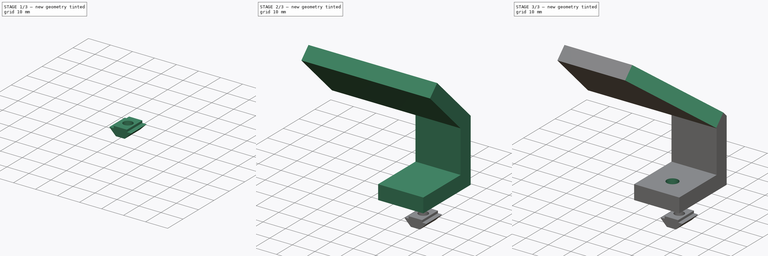
[diagram: build sequence overview — one tinted view per stage of 3, left to right]
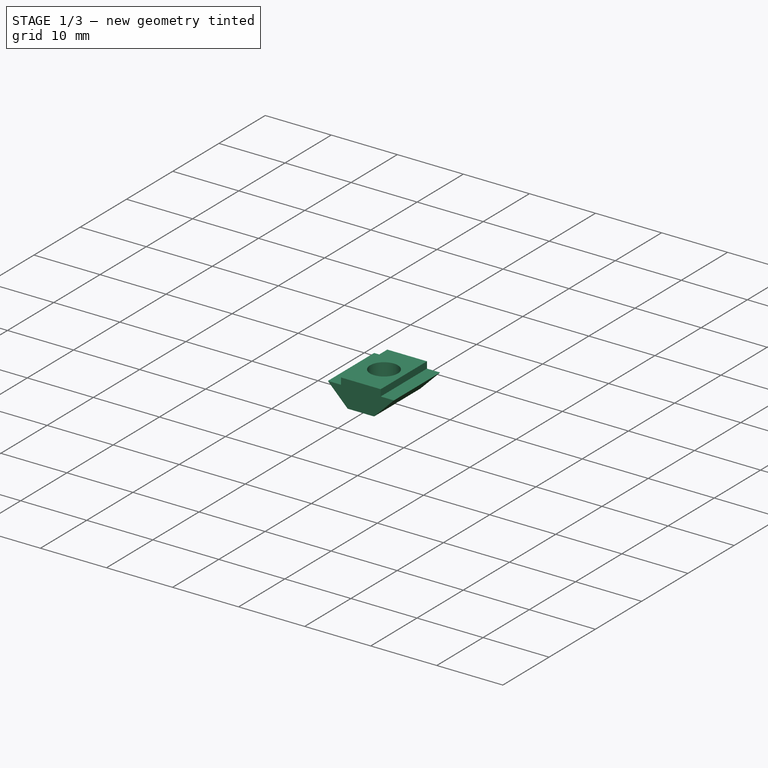
[diagram: stage 1 of 3 — iso view after this stage's code; geometry added in this stage tinted green]
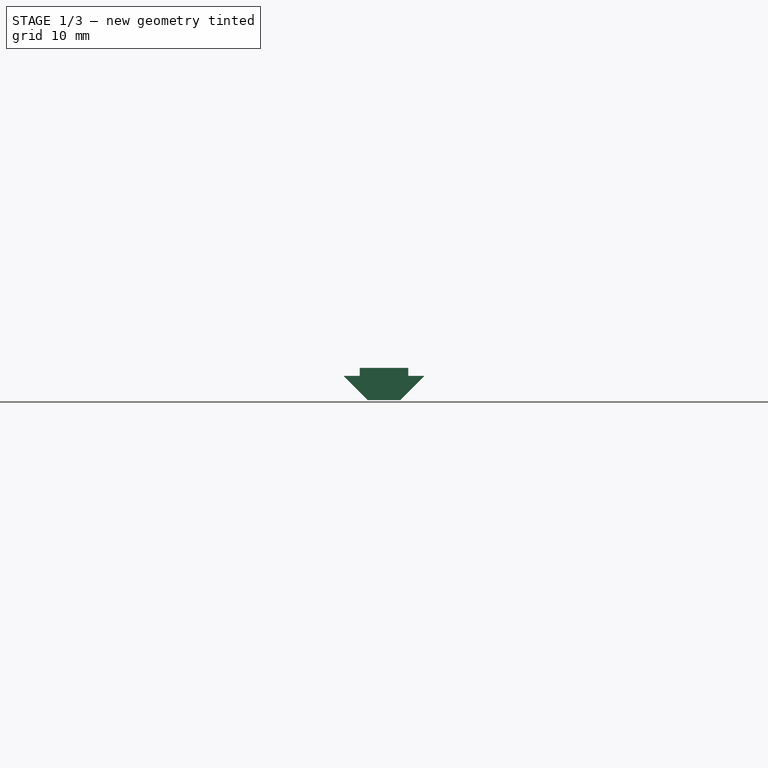
[diagram: stage 1 of 3 — front view after this stage's code; geometry added in this stage tinted green]
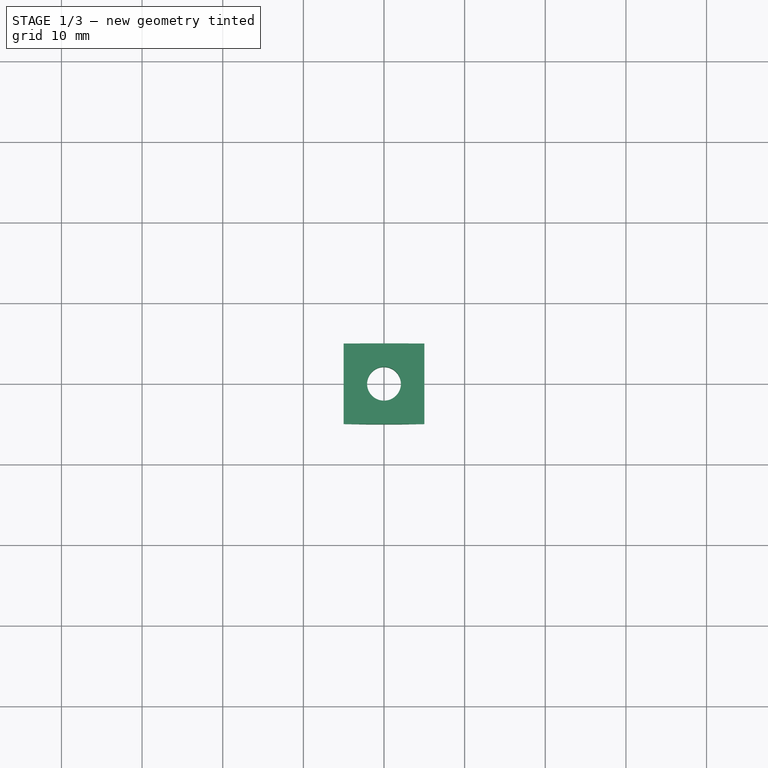
[diagram: stage 1 of 3 — top view after this stage's code; geometry added in this stage tinted green]
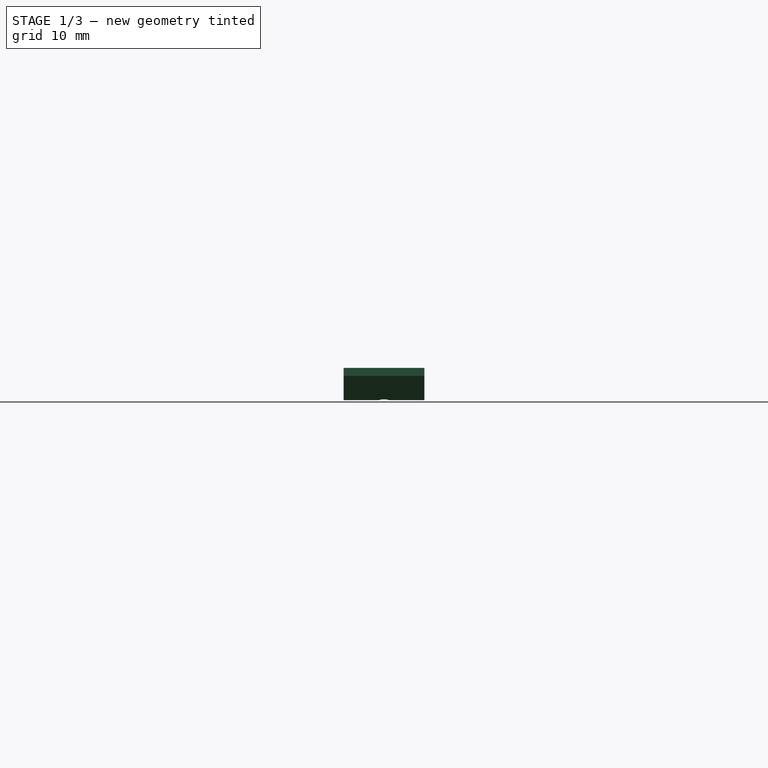
[diagram: stage 1 of 3 — right view after this stage's code; geometry added in this stage tinted green]
FCSTD DOCUMENT  (FreeCAD 0.19R21858 (Git))
Label: y_cable_chain_mount
License: All rights reserved
LicenseURL: http://en.wikipedia.org/wiki/All_rights_reserved
objects: Sketcher::SketchObject×5, PartDesign::Pad×2, PartDesign::Hole×2, PartDesign::Body×2, PartDesign::Pocket×1, PartDesign::Chamfer×1, PartDesign::Fillet×1, App::Part×1
note: 21 computed .brp shape members not serialized (recipe doc carries the construction recipe); baked Part::Feature solids carry a one-line shape summary decoded from their .brp

FEATURE [PartDesign::Body] Body030  label="Body033"
  Group = -> [Sketch077,Pad028,Sketch078,Pocket021,Chamfer003,Sketch079,Hole016]
  Origin = -> Origin096
  Tip = -> Hole016
FEATURE [Sketcher::SketchObject] Sketch080
  MapMode = 5
  Support = -> [XY_Plane097]
  sketch-geometry (1):
    g0: Circle CenterX=0 CenterY=0 CenterZ=0 NormalX=0 NormalY=0 NormalZ=1 AngleXU=0 Radius=4
  constraints (2):
    c: Coincident(g0,g-1)
    c: Diameter(g0) = 8
FEATURE [Sketcher::SketchObject] Sketch081
  MapMode = 5
  Placement = pos=(0,0,0) rot=(1,0,0;1.5708rad)
  Support = -> [XZ_Plane097]
  sketch-geometry (8):
    g0: LineSegment StartX=-3 StartY=-1 StartZ=0 EndX=-3 EndY=0 EndZ=0
    g1: LineSegment StartX=-3 StartY=0 StartZ=0 EndX=3 EndY=0 EndZ=0
    g2: LineSegment StartX=3 StartY=0 StartZ=0 EndX=3 EndY=-1 EndZ=0
    g3: LineSegment StartX=3 StartY=-1 StartZ=0 EndX=5 EndY=-1 EndZ=0
    g4: LineSegment StartX=5 StartY=-1 StartZ=0 EndX=2 EndY=-4 EndZ=0
    g5: LineSegment StartX=2 StartY=-4 StartZ=0 EndX=-2 EndY=-4 EndZ=0
    g6: LineSegment StartX=-2 StartY=-4 StartZ=0 EndX=-5 EndY=-1 EndZ=0
    g7: LineSegment StartX=-5 StartY=-1 StartZ=0 EndX=-3 EndY=-1 EndZ=0
  constraints (20):
    c: Coincident(g0,g1)
    c: Coincident(g1,g2)
    c: Vertical(g2)
    c: Coincident(g2,g3)
    c: Coincident(g4,g5)
    c: Coincident(g5,g6)
    c: Symmetric(g0,g2,g-2)
    c: Coincident(g7,g0)
    c: Symmetric(g0,g1,g-2)
    c: PointOnObject(g-1,g1)
    c: Symmetric(g5,g4,g-2)
    c: Horizontal(g3)
    c: Symmetric(g7,g3,g-2)
    c: Perpendicular(g6,g4)
    c: DistanceY(g4,g1) = 4
    c: DistanceX(g1,g1) = 6
    c: DistanceY(g2,g2) = 1
    c: Coincident(g6,g7)
    c: Coincident(g4,g3)
    c: DistanceX(g6,g3) = 10
FEATURE [PartDesign::Pad] Pad029  label="Pad030"
  Length = 10
  Length2 = 100
  Midplane = true
  Placement = pos=(0,0,0) rot=(1,0,0;1.5708rad)
  Profile = -> Sketch081
  Type = 0
FEATURE [PartDesign::Hole] Hole017
  BaseFeature = -> Pad029
  Depth = 25
  DepthType = 1
  Diameter = 4.2
  DrillPoint = 1
  DrillPointAngle = 118
  HoleCutCountersinkAngle = 90
  HoleCutDepth = 0
  HoleCutDiameter = 5
  HoleCutType = 0
  ModelActualThread = false
  Placement = pos=(0,0,0) rot=(1,0,0;1.5708rad)
  Profile = -> Sketch080
  Tapered = false
  TaperedAngle = 90
  ThreadAngle = 60
  ThreadClass = 0
  ThreadCutOffInner = 0.0866025
  ThreadCutOffOuter = 0.173205
  ThreadDirection = 0
  ThreadFit = 0
  ThreadPitch = 0.8
  ThreadSize = 6
  ThreadType = 1
  Threaded = true
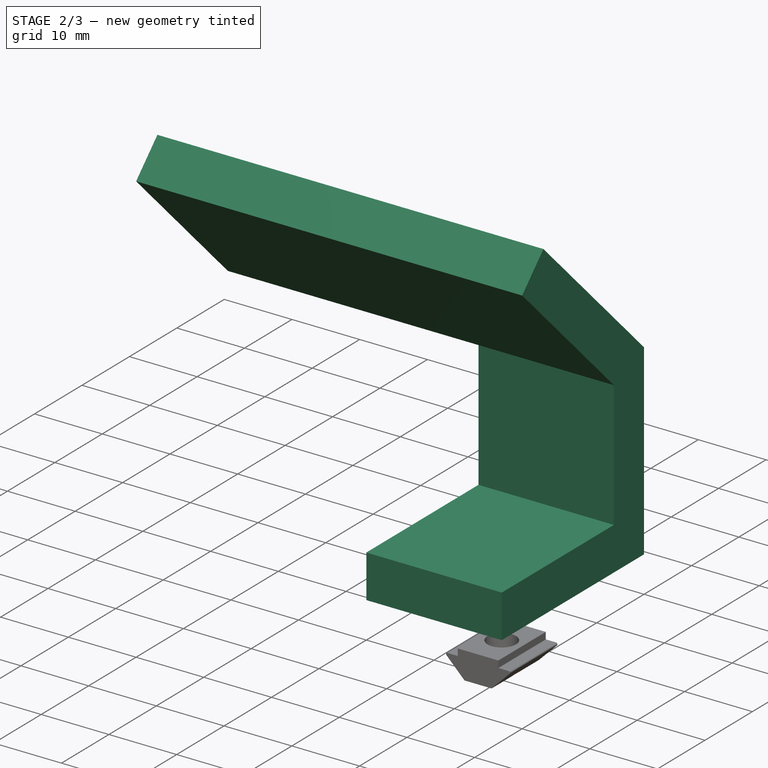
[diagram: stage 2 of 3 — iso view after this stage's code; geometry added in this stage tinted green]
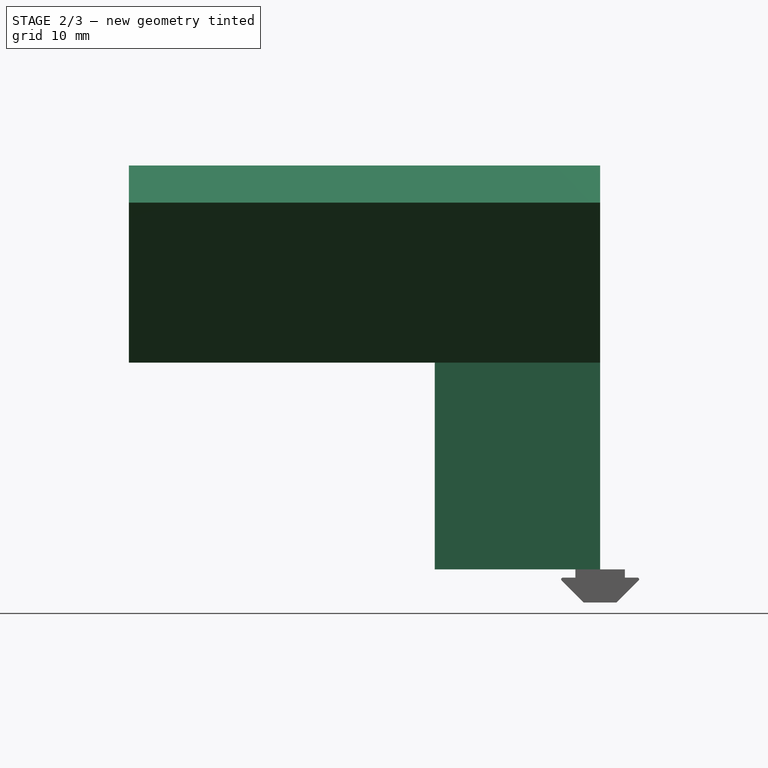
[diagram: stage 2 of 3 — front view after this stage's code; geometry added in this stage tinted green]
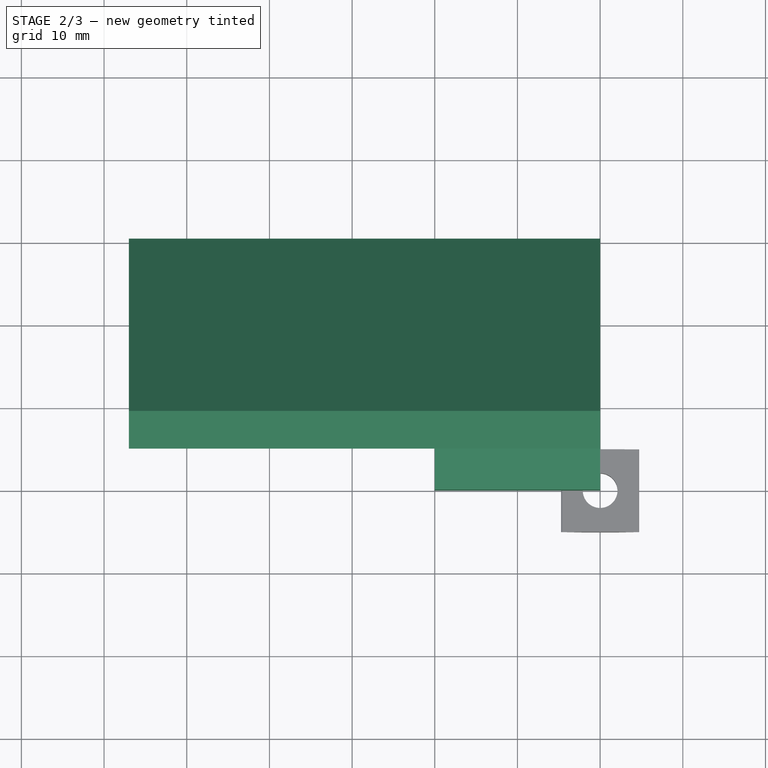
[diagram: stage 2 of 3 — top view after this stage's code; geometry added in this stage tinted green]
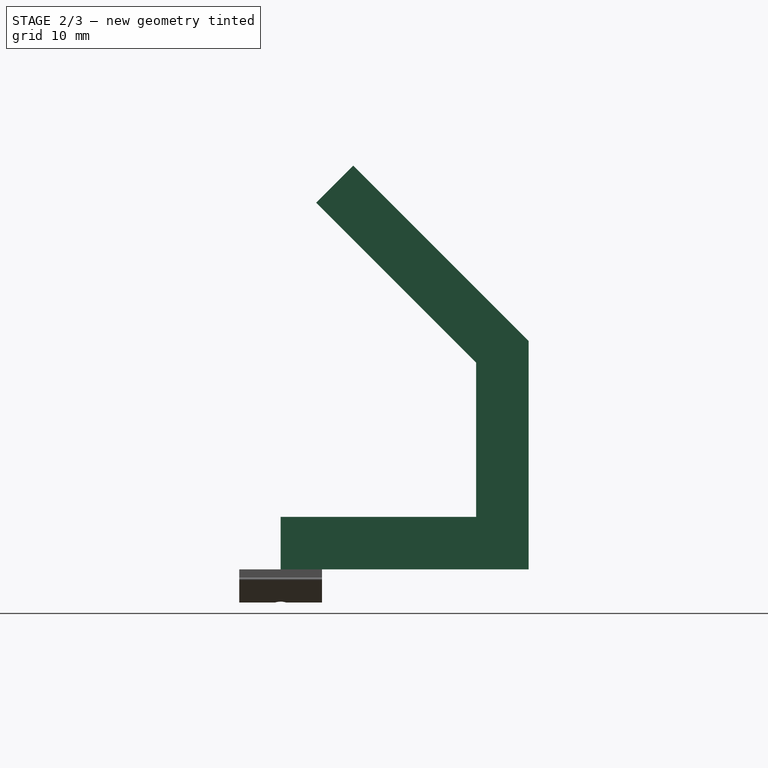
[diagram: stage 2 of 3 — right view after this stage's code; geometry added in this stage tinted green]
FEATURE [Sketcher::SketchObject] Sketch077
  MapMode = 5
  Placement = pos=(0,0,0) rot=(0.57735,0.57735,0.57735;2.0944rad)
  Support = -> [YZ_Plane096]
  sketch-geometry (8):
    g0: LineSegment StartX=0 StartY=0 StartZ=0 EndX=0 EndY=6.35 EndZ=0
    g1: LineSegment StartX=0 StartY=6.35 StartZ=0 EndX=23.65 EndY=6.35 EndZ=0
    g2: LineSegment StartX=23.65 StartY=6.35 StartZ=0 EndX=23.65 EndY=25 EndZ=0
    g3: LineSegment StartX=23.65 StartY=25 StartZ=0 EndX=4.29667 EndY=44.3533 EndZ=0
    g4: LineSegment StartX=4.29667 StartY=44.3533 StartZ=0 EndX=8.7868 EndY=48.8435 EndZ=0
    g5: LineSegment StartX=8.7868 StartY=48.8435 StartZ=0 EndX=30 EndY=27.6303 EndZ=0
    g6: LineSegment StartX=30 StartY=27.6303 StartZ=0 EndX=30 EndY=0 EndZ=0
    g7: LineSegment StartX=30 StartY=0 StartZ=0 EndX=0 EndY=0 EndZ=0
  constraints (23):
    c: Coincident(g-1,g0)
    c: Vertical(g0)
    c: Coincident(g0,g1)
    c: Horizontal(g1)
    c: Coincident(g1,g2)
    c: Vertical(g2)
    c: Coincident(g2,g3)
    c: Coincident(g3,g4)
    c: Coincident(g4,g5)
    c: Coincident(g5,g6)
    c: PointOnObject(g6,g-1)
    c: Vertical(g6)
    c: Coincident(g6,g7)
    c: DistanceY(g0,g0) = 6.35
    c: DistanceX(g1,g6) = 6.35
    c: Parallel(g5,g3)
    c: Perpendicular(g3,g4)
    c: Angle(g3,g2) = 2.35619
    c: Distance(g4) = 6.35
    c: Distance(g7) = 30
    c: Coincident(g7,g0)
    c: DistanceY(g0,g2) = 25
    c: Distance(g5) = 30
FEATURE [PartDesign::Pad] Pad028  label="Pad029"
  Length = 57
  Length2 = 100
  Placement = pos=(0,0,0) rot=(0.57735,0.57735,0.57735;2.0944rad)
  Profile = -> Sketch077
  Reversed = true
  Type = 0
FEATURE [Sketcher::SketchObject] Sketch078
  MapMode = 5
  Placement = pos=(0,0,0) rot=(1,0,0;1.5708rad)
  Support = -> [XZ_Plane096]
  sketch-geometry (4):
    g0: LineSegment StartX=-70 StartY=0 StartZ=0 EndX=-20 EndY=0 EndZ=0
    g1: LineSegment StartX=-20 StartY=0 StartZ=0 EndX=-20 EndY=25 EndZ=0
    g2: LineSegment StartX=-20 StartY=25 StartZ=0 EndX=-70 EndY=25 EndZ=0
    g3: LineSegment StartX=-70 StartY=25 StartZ=0 EndX=-70 EndY=0 EndZ=0
  constraints (12):
    c: Coincident(g0,g1)
    c: Coincident(g1,g2)
    c: Coincident(g2,g3)
    c: Coincident(g3,g0)
    c: Horizontal(g0)
    c: Horizontal(g2)
    c: Vertical(g1)
    c: Vertical(g3)
    c: DistanceY(g3,g3) = 25
    c: Distance(g2) = 50
    c: PointOnObject(g0,g-1)
    c: DistanceX(g0,g-1) = 20
FEATURE [PartDesign::Pocket] Pocket021
  BaseFeature = -> Pad028
  Length = 5
  Length2 = 100
  Midplane = true
  Placement = pos=(0,0,0) rot=(0.57735,0.57735,0.57735;2.0944rad)
  Profile = -> Sketch078
  Type = 1
FEATURE [PartDesign::Fillet] Fillet006
  Base = -> Hole017 [Edge5,Edge31]
  BaseFeature = -> Hole017
  Placement = pos=(0,0,0) rot=(1,0,0;1.5708rad)
  Radius = 0.2
  SupportTransform = true
FEATURE [PartDesign::Body] Body031  label="t-nut_m5"
  Group = -> [Sketch081,Pad029,Sketch080,Hole017,Fillet006]
  Origin = -> Origin097
  Placement = pos=(-9.95,9.9,-0.85) rot=(0,0,1;0rad)
  Tip = -> Fillet006
FEATURE [App::Part] Part047  label="y_cable_chain_mount"
  Group = -> [Body030,Body031]
  Origin = -> Origin095
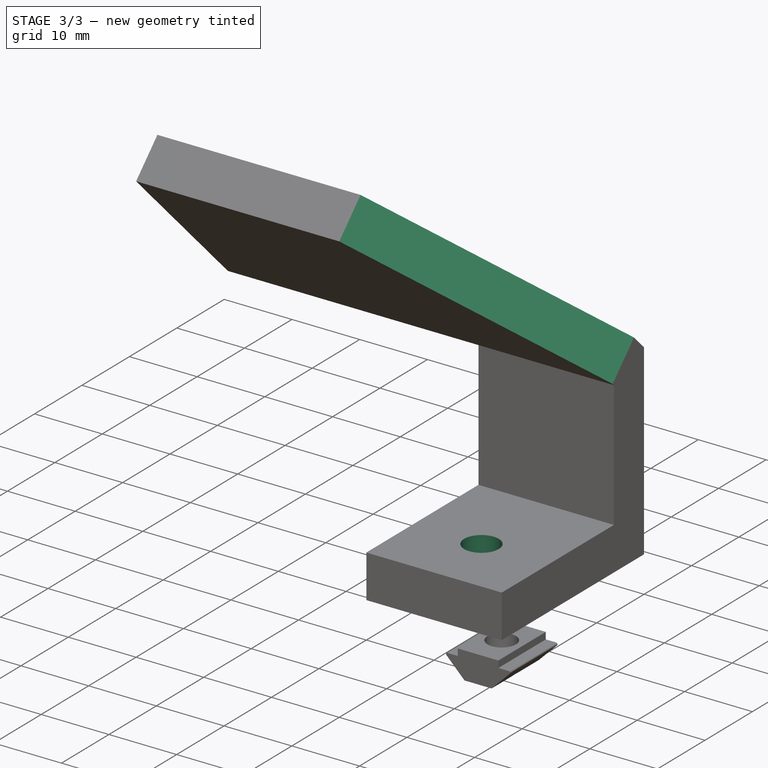
[diagram: stage 3 of 3 — iso view after this stage's code; geometry added in this stage tinted green]
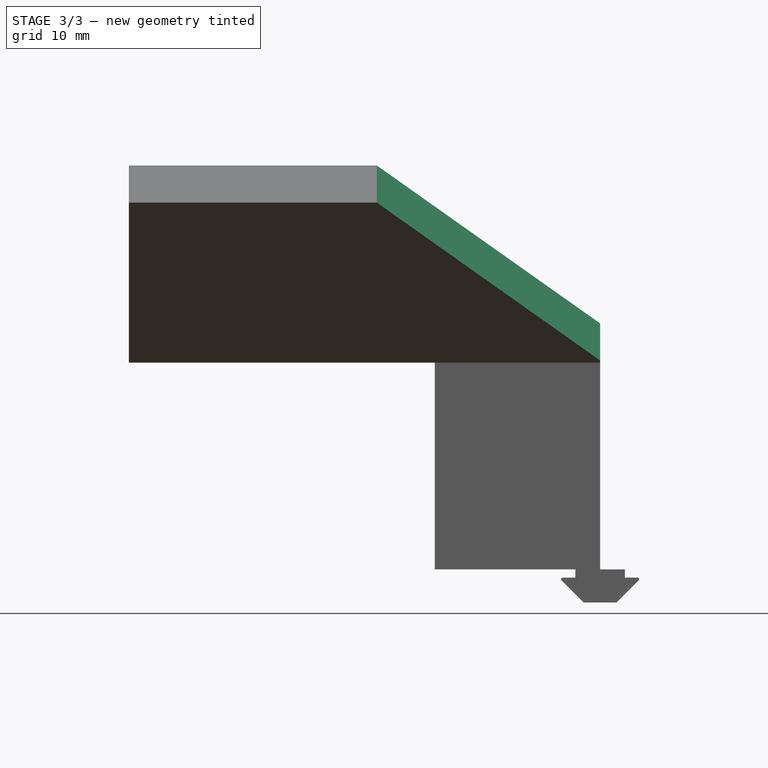
[diagram: stage 3 of 3 — front view after this stage's code; geometry added in this stage tinted green]
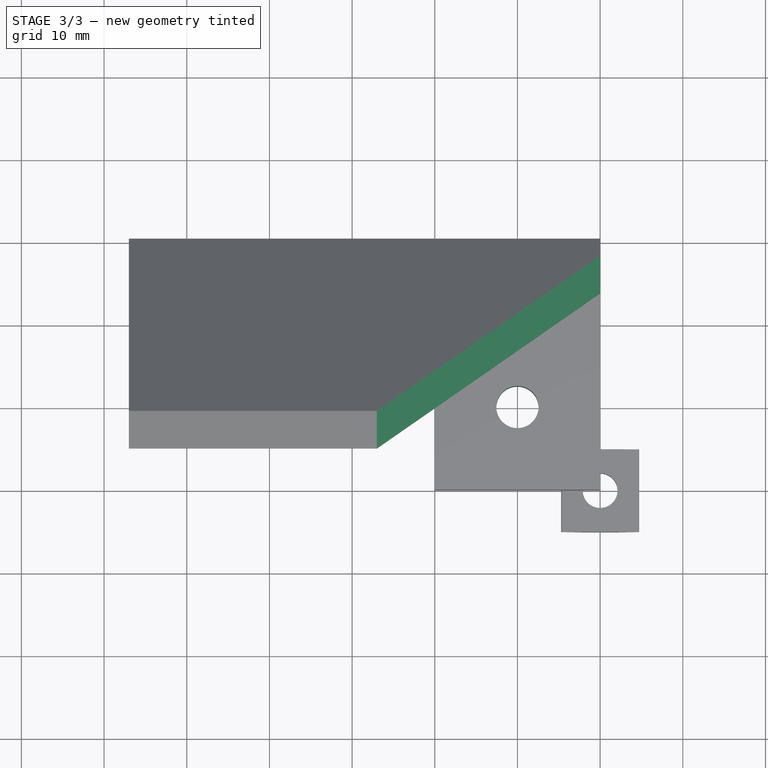
[diagram: stage 3 of 3 — top view after this stage's code; geometry added in this stage tinted green]
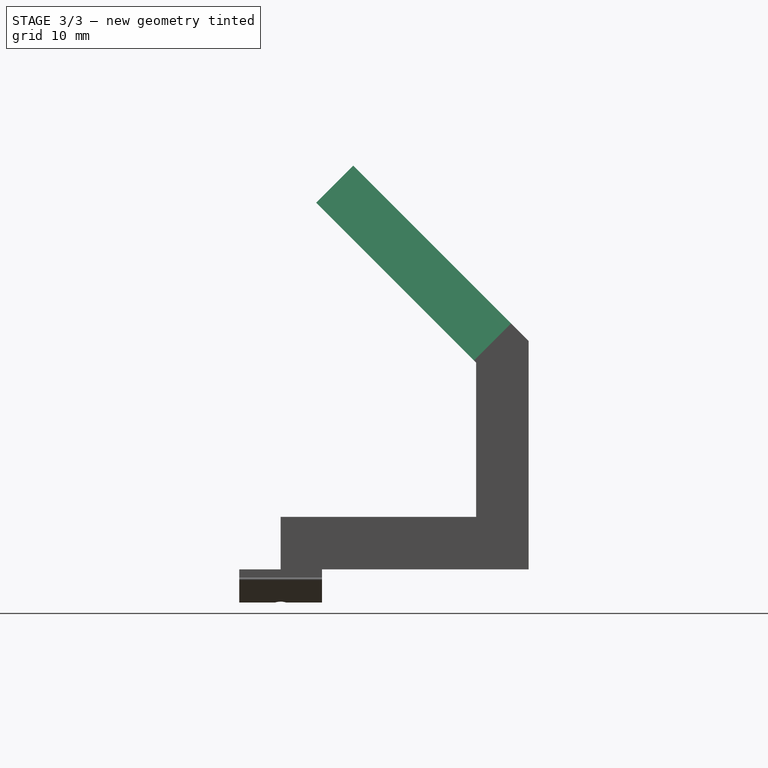
[diagram: stage 3 of 3 — right view after this stage's code; geometry added in this stage tinted green]
FEATURE [PartDesign::Chamfer] Chamfer003
  Angle = 45
  Base = -> Pocket021 [Edge8]
  BaseFeature = -> Pocket021
  ChamferType = 0
  FlipDirection = false
  Placement = pos=(0,0,0) rot=(0.57735,0.57735,0.57735;2.0944rad)
  Size = 27
  Size2 = 1
  SupportTransform = true
FEATURE [Sketcher::SketchObject] Sketch079
  AttachmentOffset = pos=(0,0,6.35) rot=(0,0,1;0rad)
  MapMode = 5
  Placement = pos=(0,0,6.35) rot=(0,0,1;0rad)
  Support = -> [XY_Plane096]
  sketch-geometry (1):
    g0: Circle CenterX=-10 CenterY=10 CenterZ=0 NormalX=0 NormalY=0 NormalZ=1 AngleXU=0 Radius=2.5
  constraints (3):
    c: Diameter(g0) = 5
    c: DistanceY(g-1,g0) = 10
    c: DistanceX(g0,g-1) = 10
FEATURE [PartDesign::Hole] Hole016
  BaseFeature = -> Chamfer003
  Depth = 25
  DepthType = 1
  Diameter = 5.1
  DrillPoint = 1
  DrillPointAngle = 118
  HoleCutCountersinkAngle = 90
  HoleCutDepth = 50
  HoleCutDiameter = 10
  HoleCutType = 0
  ModelActualThread = false
  Placement = pos=(0,0,0) rot=(0.57735,0.57735,0.57735;2.0944rad)
  Profile = -> Sketch079
  Tapered = false
  TaperedAngle = 90
  ThreadAngle = 0
  ThreadClass = 0
  ThreadCutOffInner = 0
  ThreadCutOffOuter = 0
  ThreadDirection = 0
  ThreadFit = 0
  ThreadPitch = 0
  ThreadSize = 0
  ThreadType = 0
  Threaded = false
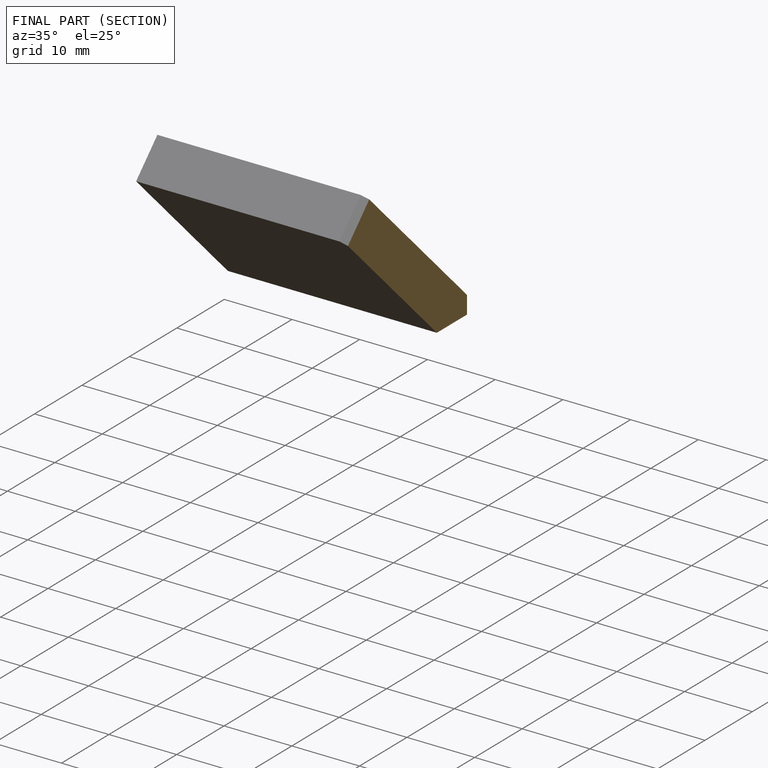
[diagram: finished part — half-section view (interior)]
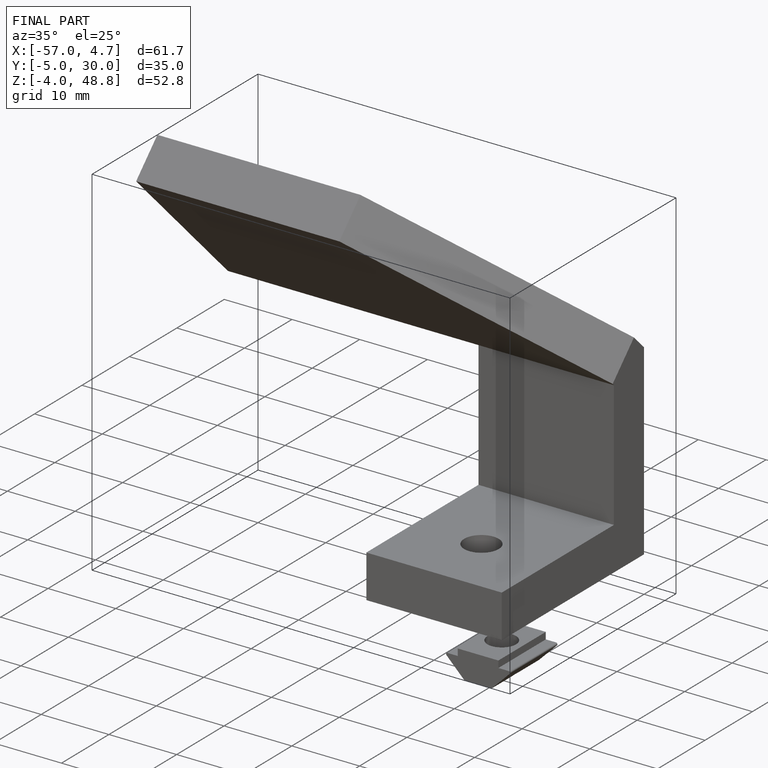
[diagram: finished part — iso view with bounding-box wireframe]
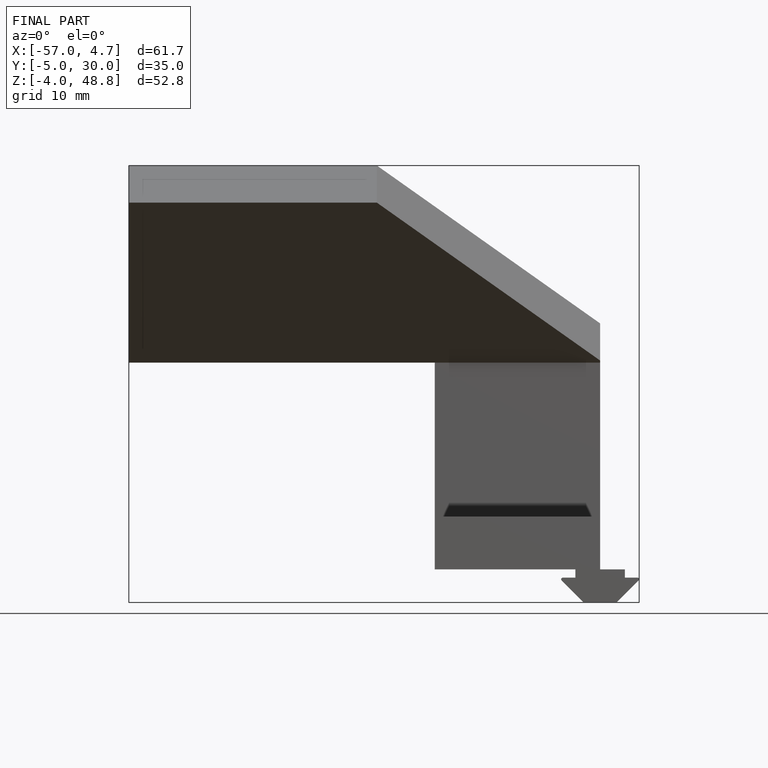
[diagram: finished part — front view with bounding-box wireframe]
